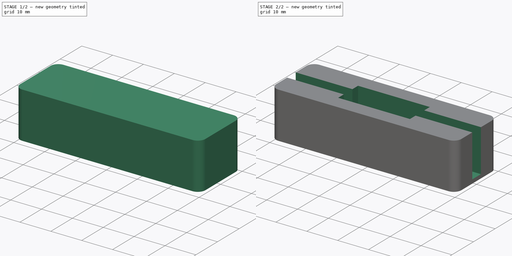
[diagram: build sequence overview — one tinted view per stage of 2, left to right]
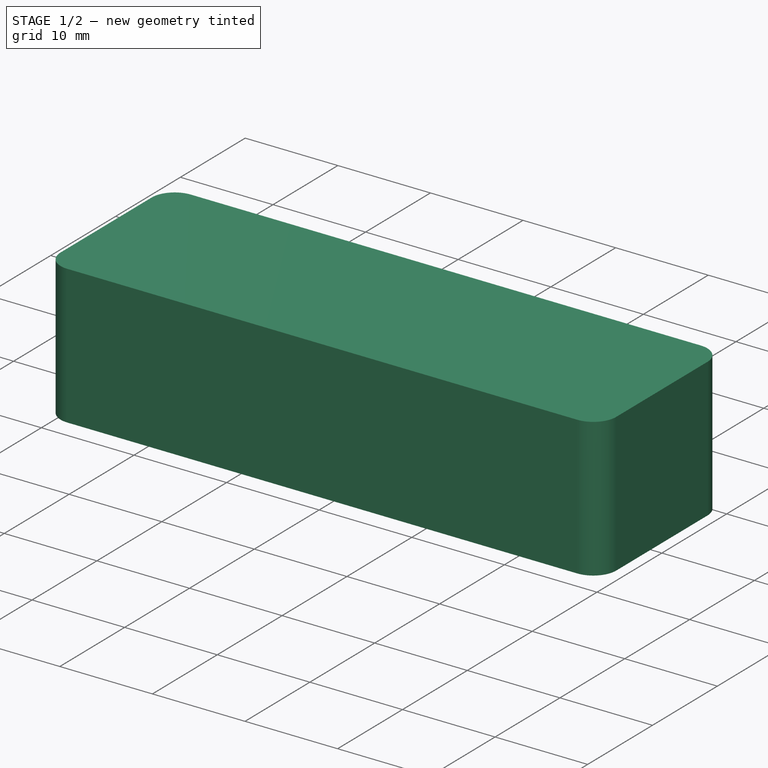
[diagram: stage 1 of 2 — iso view after this stage's code; geometry added in this stage tinted green]
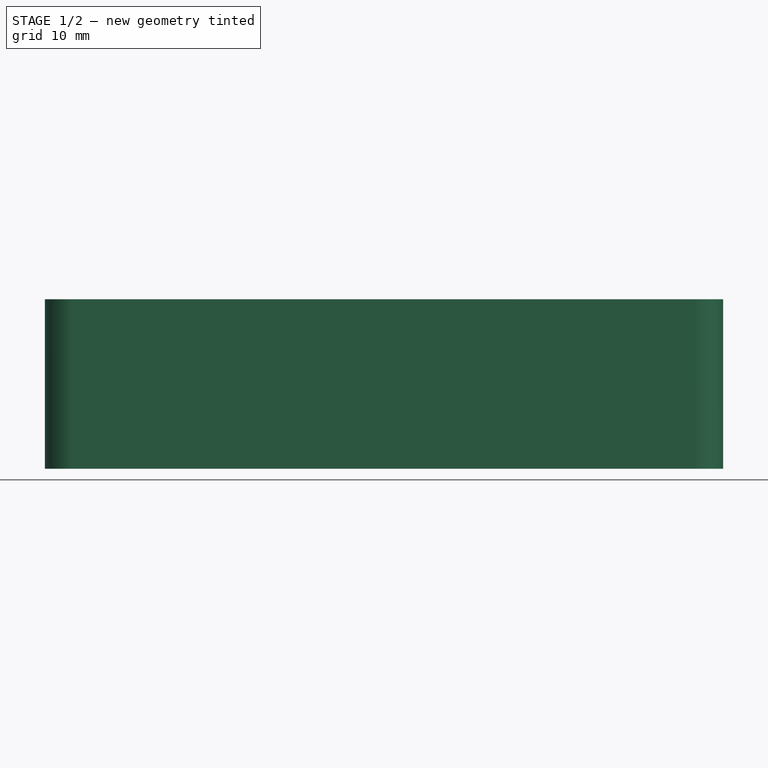
[diagram: stage 1 of 2 — front view after this stage's code; geometry added in this stage tinted green]
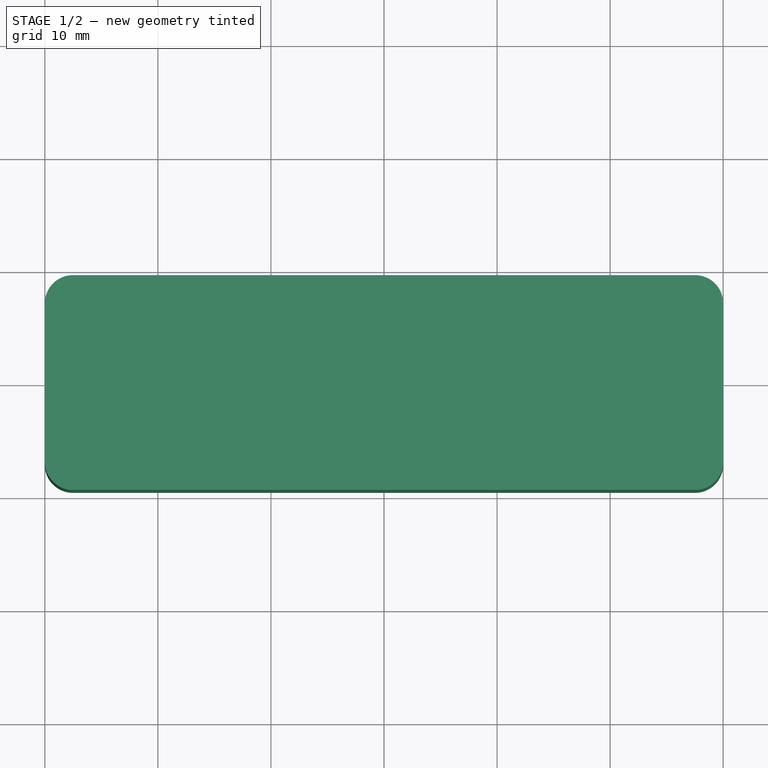
[diagram: stage 1 of 2 — top view after this stage's code; geometry added in this stage tinted green]
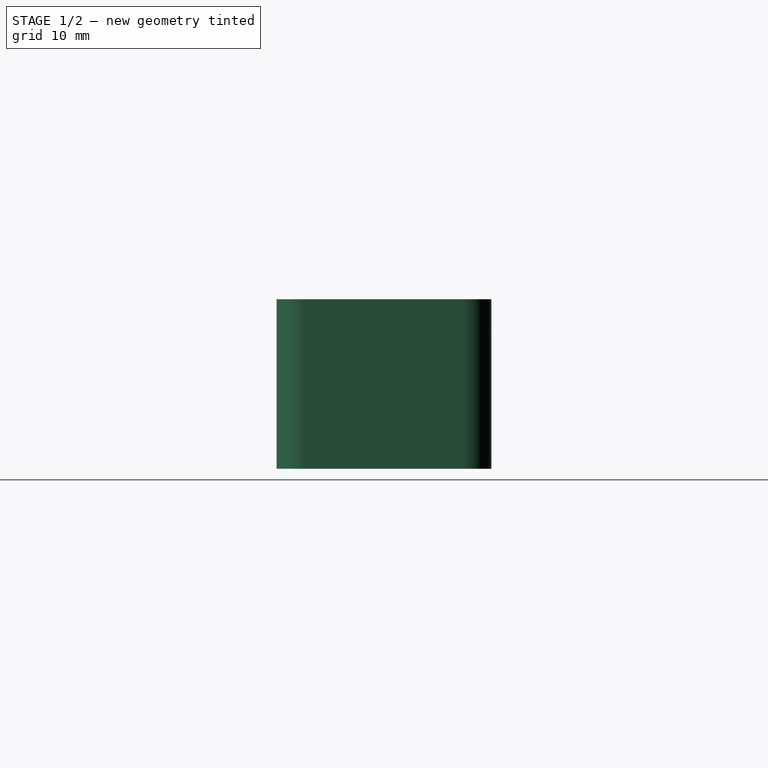
[diagram: stage 1 of 2 — right view after this stage's code; geometry added in this stage tinted green]
FCSTD DOCUMENT  (FreeCAD 0.21R32634 (Git))
Label: lamp
License: All rights reserved
LicenseURL: https://en.wikipedia.org/wiki/All_rights_reserved
objects: Sketcher::SketchObject×2, PartDesign::Pad×1, PartDesign::Pocket×1, PartDesign::Body×1
note: 7 computed .brp shape members not serialized (recipe doc carries the construction recipe); baked Part::Feature solids carry a one-line shape summary decoded from their .brp

FEATURE [Sketcher::SketchObject] Sketch
  FullyConstrained = true
  MapMode = 5
  Support = -> [XY_Plane]
  sketch-geometry (8):
    g0: LineSegment StartX=-27.52 StartY=9.5 StartZ=0 EndX=27.52 EndY=9.5 EndZ=0
    g1: LineSegment StartX=30 StartY=7.02 StartZ=0 EndX=30 EndY=-7.02 EndZ=0
    g2: LineSegment StartX=27.52 StartY=-9.5 StartZ=0 EndX=-27.52 EndY=-9.5 EndZ=0
    g3: LineSegment StartX=-30 StartY=-7.02 StartZ=0 EndX=-30 EndY=7.02 EndZ=0
    g4: ArcOfCircle CenterX=27.52 CenterY=7.02 CenterZ=0 NormalX=0 NormalY=0 NormalZ=1 AngleXU=0 Radius=2.48 StartAngle=0 EndAngle=1.5708
    g5: ArcOfCircle CenterX=27.52 CenterY=-7.02 CenterZ=0 NormalX=0 NormalY=0 NormalZ=1 AngleXU=0 Radius=2.48 StartAngle=4.71239 EndAngle=6.28319
    g6: ArcOfCircle CenterX=-27.52 CenterY=-7.02 CenterZ=0 NormalX=0 NormalY=0 NormalZ=1 AngleXU=0 Radius=2.48 StartAngle=3.14159 EndAngle=4.71239
    g7: ArcOfCircle CenterX=-27.52 CenterY=7.02 CenterZ=0 NormalX=0 NormalY=0 NormalZ=1 AngleXU=0 Radius=2.48 StartAngle=1.5708 EndAngle=3.14159
  constraints (19):
    c: Horizontal(g0)
    c: Horizontal(g2)
    c: Vertical(g1)
    c: Vertical(g3)
    c: Tangent(g0,g4) = 1.5708
    c: Tangent(g1,g4) = 1.5708
    c: Tangent(g1,g5) = 1.5708
    c: Tangent(g2,g5) = 1.5708
    c: Tangent(g2,g6) = 1.5708
    c: Tangent(g3,g6) = 1.5708
    c: Tangent(g0,g7) = 1.5708
    c: Tangent(g3,g7) = 1.5708
    c: Equal(g3,g1)
    c: Equal(g0,g2)
    c: DistanceY(g2,g0) = 19
    c: DistanceX(g3,g1) = 60
    c: Radius(g6) = 2.48
    c: Radius(g7) = 2.48
    c: Symmetric(g2,g0,g-1)
FEATURE [PartDesign::Pad] Pad
  Direction = (0,0,1)
  Length = 15
  Length2 = 10
  Profile = -> Sketch
  ReferenceAxis = -> Sketch [N_Axis]
  Type = 0
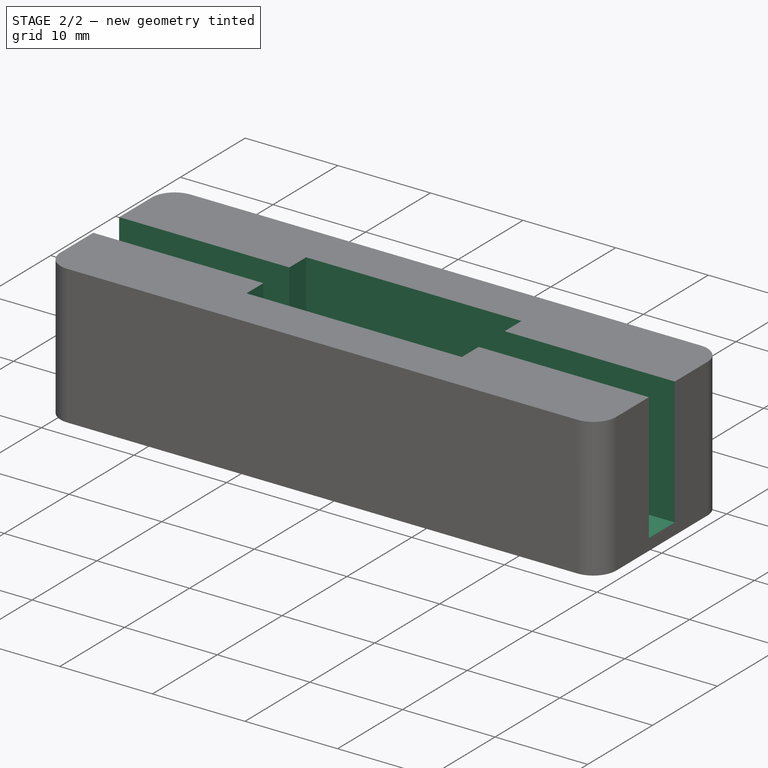
[diagram: stage 2 of 2 — iso view after this stage's code; geometry added in this stage tinted green]
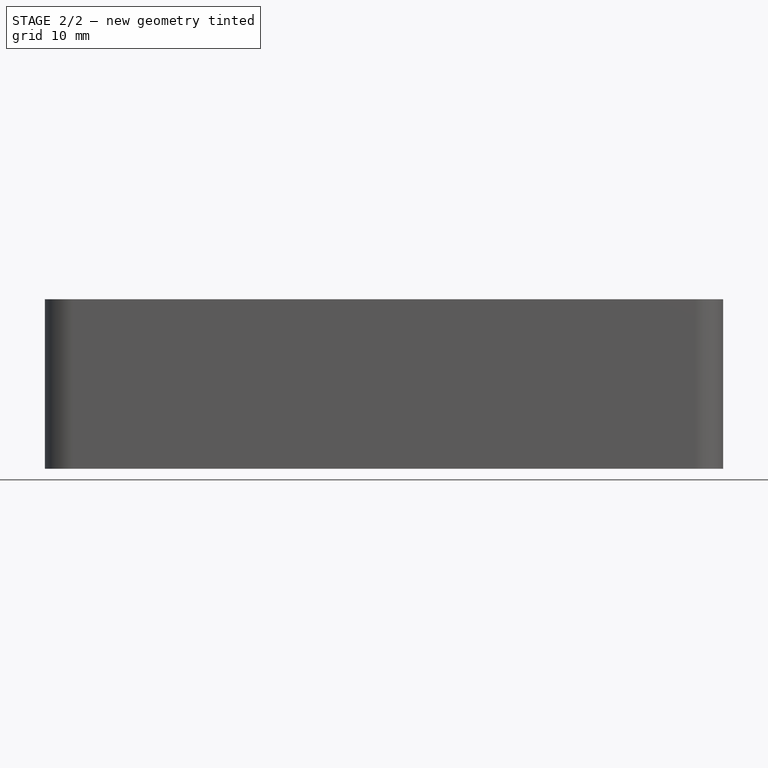
[diagram: stage 2 of 2 — front view after this stage's code; geometry added in this stage tinted green]
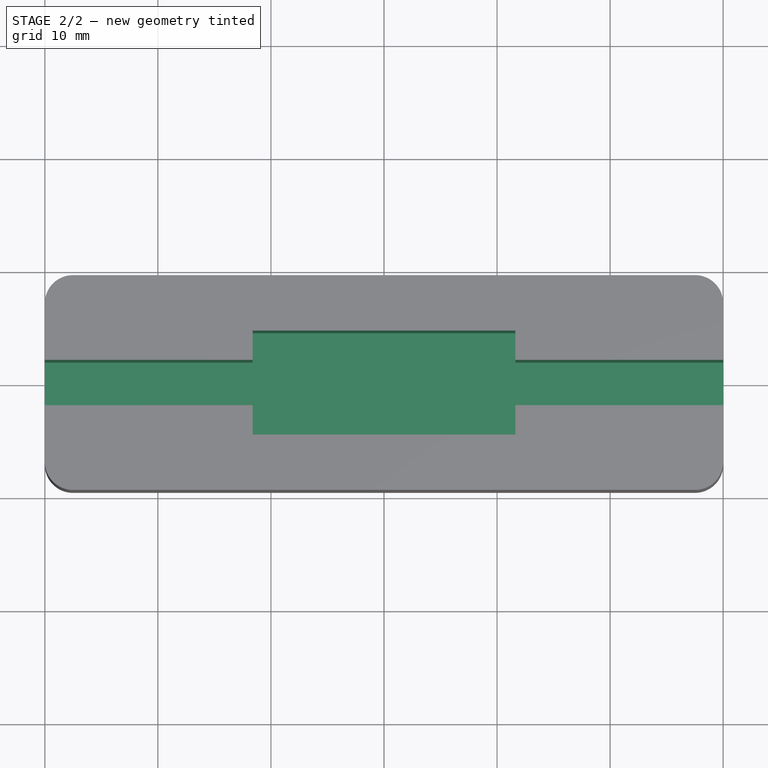
[diagram: stage 2 of 2 — top view after this stage's code; geometry added in this stage tinted green]
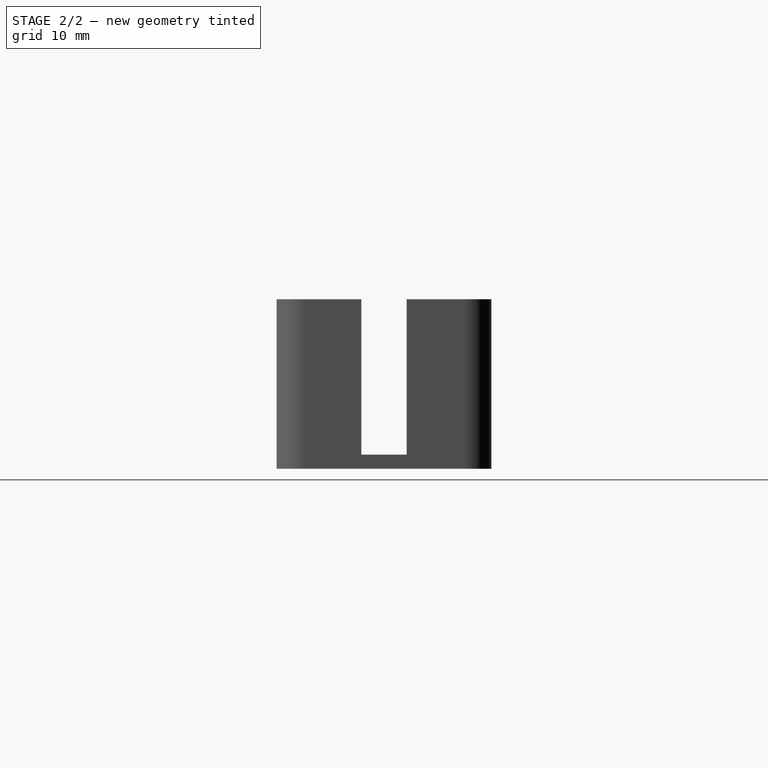
[diagram: stage 2 of 2 — right view after this stage's code; geometry added in this stage tinted green]
FEATURE [Sketcher::SketchObject] Sketch001
  FullyConstrained = true
  MapMode = 5
  Placement = pos=(0,0,15) rot=(0,0,1;0rad)
  Support = -> [Pad]
  sketch-geometry (12):
    g0: LineSegment StartX=-30.255 StartY=2 StartZ=0 EndX=-11.625 EndY=2 EndZ=0
    g1: LineSegment StartX=-11.625 StartY=2 StartZ=0 EndX=-11.625 EndY=4.6 EndZ=0
    g2: LineSegment StartX=-11.625 StartY=4.6 StartZ=0 EndX=11.625 EndY=4.6 EndZ=0
    g3: LineSegment StartX=11.625 StartY=4.6 StartZ=0 EndX=11.625 EndY=2 EndZ=0
    g4: LineSegment StartX=11.625 StartY=2 StartZ=0 EndX=30.255 EndY=2 EndZ=0
    g5: LineSegment StartX=30.255 StartY=2 StartZ=0 EndX=30.255 EndY=-2 EndZ=0
    g6: LineSegment StartX=30.255 StartY=-2 StartZ=0 EndX=11.625 EndY=-2 EndZ=0
    g7: LineSegment StartX=11.625 StartY=-2 StartZ=0 EndX=11.625 EndY=-4.6 EndZ=0
    g8: LineSegment StartX=11.625 StartY=-4.6 StartZ=0 EndX=-11.625 EndY=-4.6 EndZ=0
    g9: LineSegment StartX=-11.625 StartY=-4.6 StartZ=0 EndX=-11.625 EndY=-2 EndZ=0
    g10: LineSegment StartX=-11.625 StartY=-2 StartZ=0 EndX=-30.255 EndY=-2 EndZ=0
    g11: LineSegment StartX=-30.255 StartY=-2 StartZ=0 EndX=-30.255 EndY=2 EndZ=0
  constraints (35):
    c: Horizontal(g0)
    c: Coincident(g0,g1)
    c: Coincident(g1,g2)
    c: Horizontal(g2)
    c: Coincident(g2,g3)
    c: Vertical(g3)
    c: Coincident(g3,g4)
    c: Horizontal(g4)
    c: Coincident(g4,g5)
    c: Vertical(g5)
    c: Coincident(g5,g6)
    c: Horizontal(g6)
    c: Coincident(g6,g7)
    c: Vertical(g7)
    c: Coincident(g7,g8)
    c: Horizontal(g8)
    c: Coincident(g8,g9)
    c: Coincident(g9,g10)
    c: Horizontal(g10)
    c: Coincident(g10,g11)
    c: Coincident(g11,g0)
    c: Vertical(g11)
    c: Vertical(g9)
    c: Vertical(g1)
    c: Equal(g2,g8)
    c: Symmetric(g1,g7,g-1)
    c: DistanceX(g2,g2) = 23.25
    c: DistanceY(g7,g2) = 9.2
    c: Equal(g11,g5)
    c: DistanceY(g11,g11) = 4
    c: Equal(g9,g1)
    c: Equal(g1,g3)
    c: Equal(g0,g10)
    c: Equal(g10,g6)
    c: DistanceX(g0,g0) = 18.63
FEATURE [PartDesign::Pocket] Pocket
  BaseFeature = -> Pad
  Direction = (0,0,-1)
  Length = 13.75
  Length2 = 5
  Profile = -> Sketch001
  ReferenceAxis = -> Sketch001 [N_Axis]
  Type = 0
FEATURE [PartDesign::Body] Body
  Group = -> [Sketch,Pad,Sketch001,Pocket]
  Origin = -> Origin
  Tip = -> Pocket
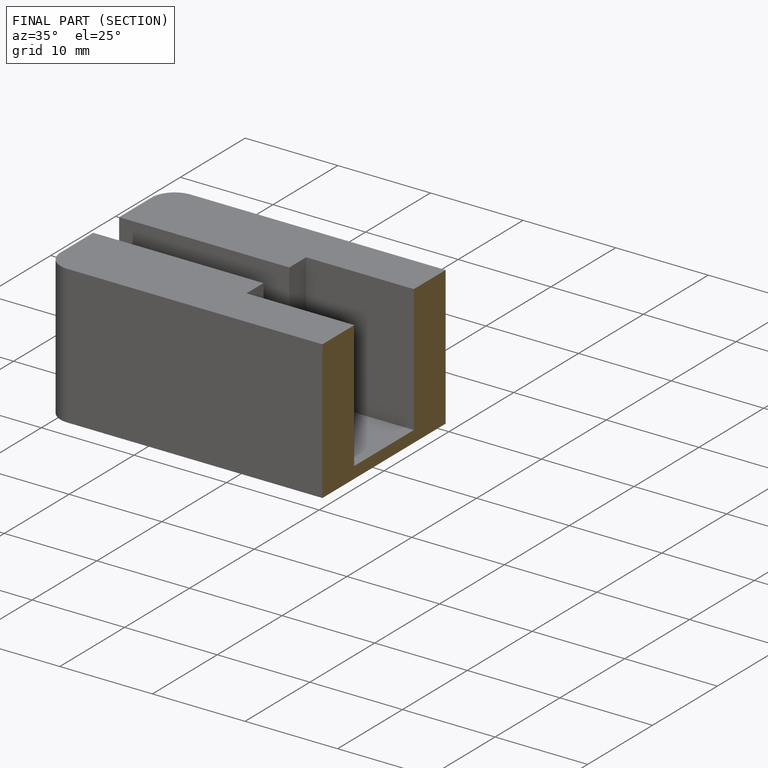
[diagram: finished part — half-section view (interior)]
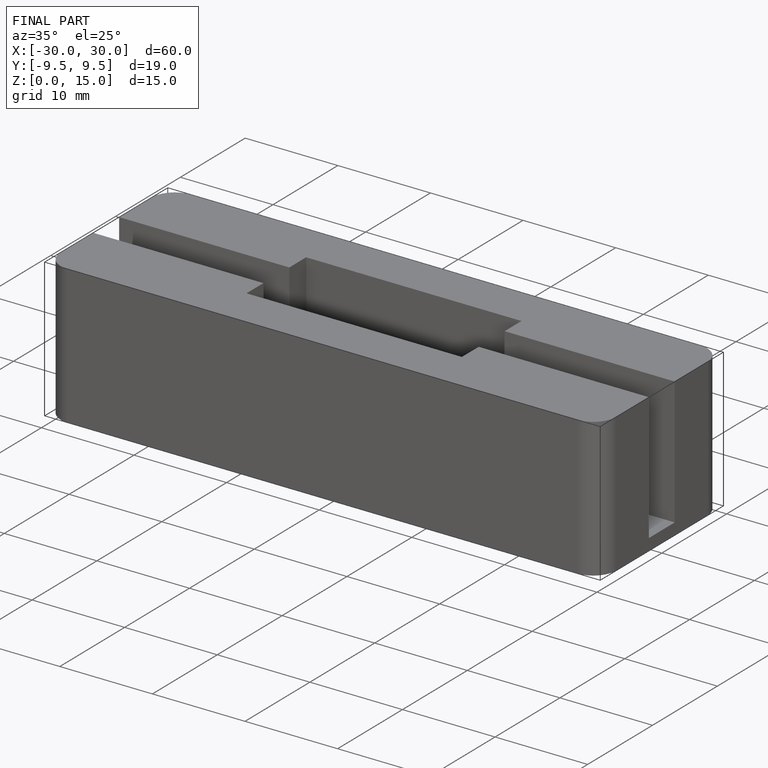
[diagram: finished part — iso view with bounding-box wireframe]
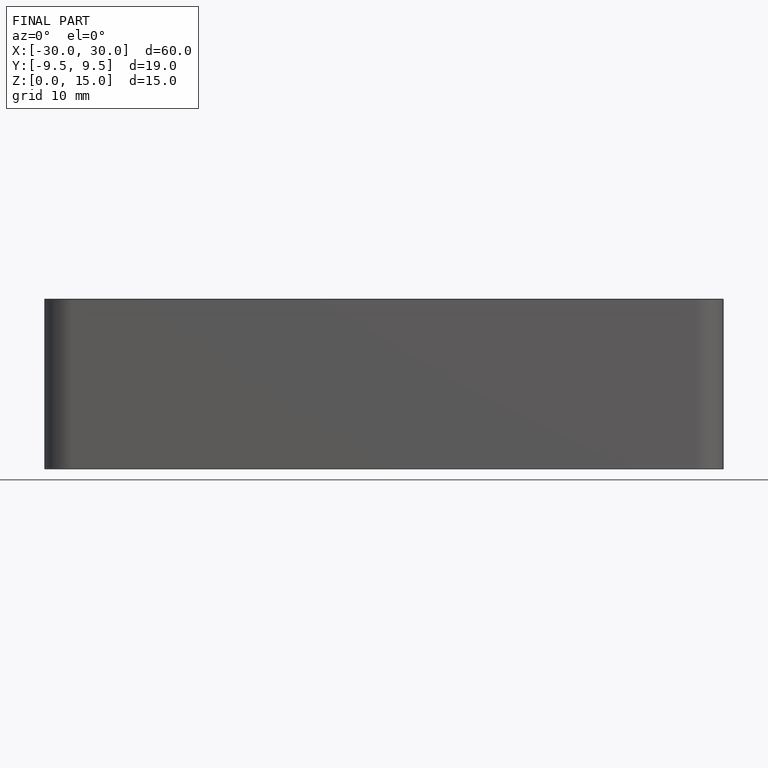
[diagram: finished part — front view with bounding-box wireframe]
